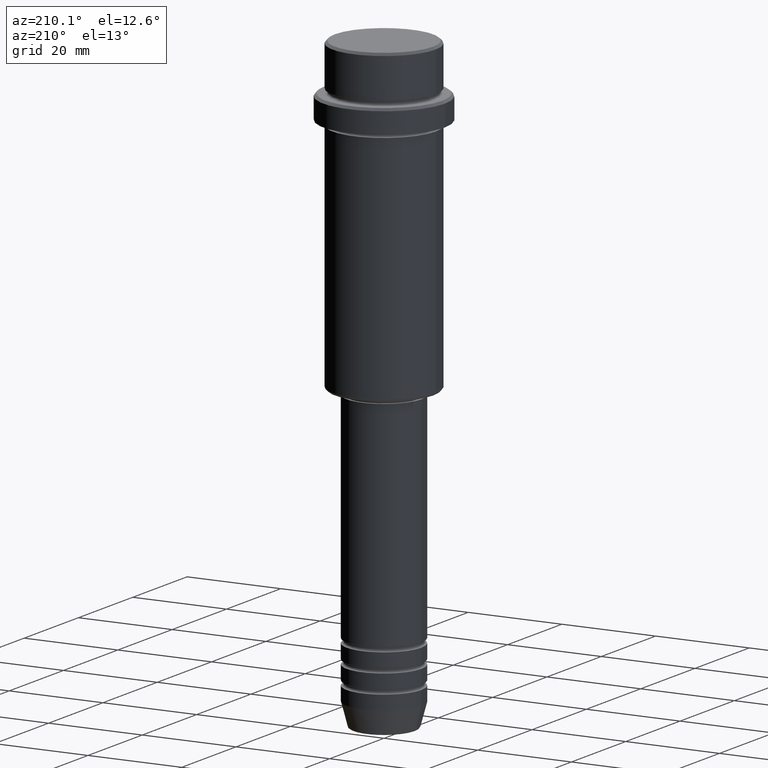
[diagram: clean part render]
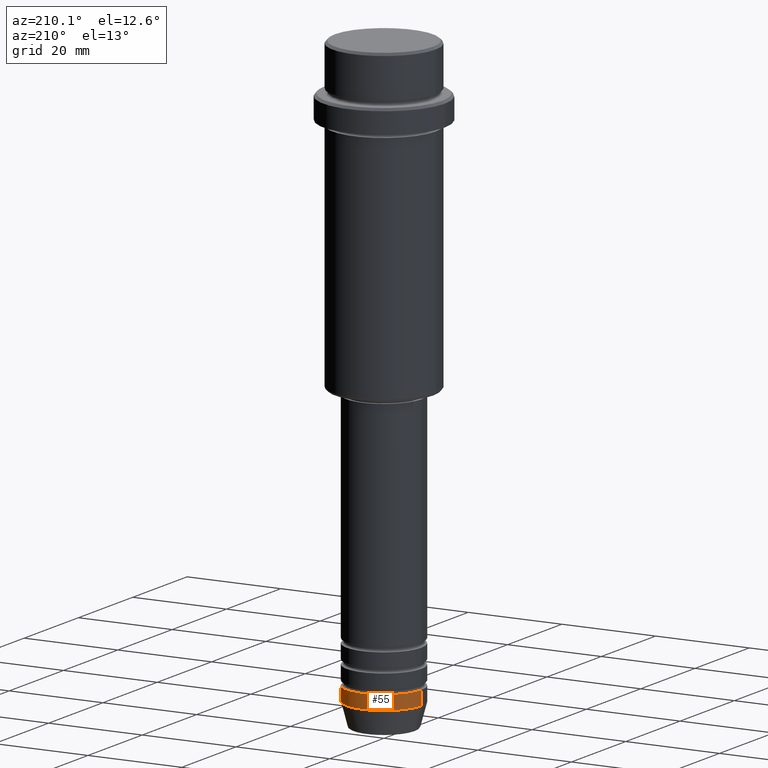
[diagram: same view with one face highlighted and labeled with its STEP entity id]
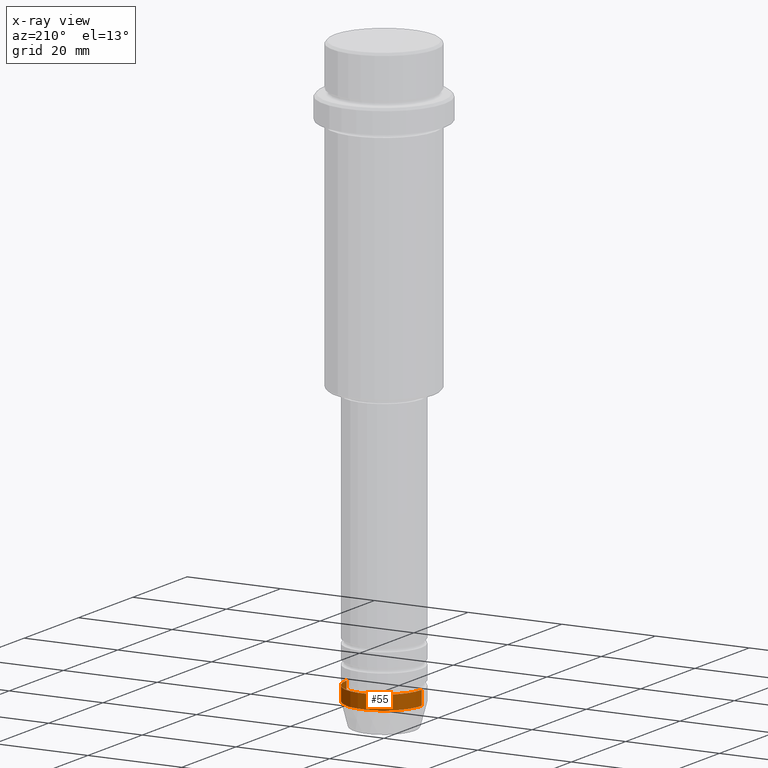
[diagram: x-ray of the same camera — body ghosted, the highlighted face saturated]
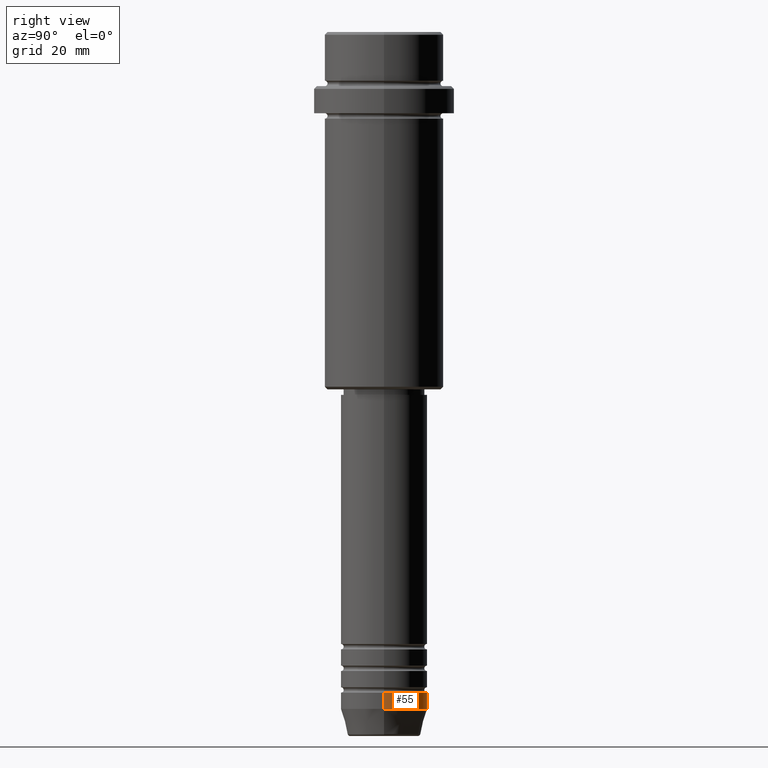
[diagram: same view with one face highlighted and labeled with its STEP entity id]
A machine part, auxiliary view. The second image highlights one B-rep face of the part: STEP entity #55.
The next image is the same camera in x-ray: the body ghosted, the highlighted face saturated — about 0% of this face is hidden behind the body in this view.
A second angle (right view) of the same face is appended — the face is thin or edge-on in the first view.
In plain terms, the highlighted cylindrical surface (partial cylindrical patch) has radius 8 mm, axis along (-0, -0, 1).
Its self-contained STEP definition (entity closure, byte-faithful):
#9 = DIRECTION ( 'NONE',  ( -0.000000000000000000, -0.000000000000000000, 1.000000000000000000 ) ) ;
#55 = ADVANCED_FACE ( 'NONE', ( #1025 ), #695, .T. ) ;
#66 = VERTEX_POINT ( 'NONE', #1174 ) ;
#120 = VECTOR ( 'NONE', #1308, 1000.000000000000000 ) ;
#151 = CARTESIAN_POINT ( 'NONE',  ( -8.000000000000000000, 9.797174393178825657E-16, 0.000000000000000000 ) ) ;
#203 = CARTESIAN_POINT ( 'NONE',  ( 0.000000000000000000, 0.000000000000000000, -122.0000000000000000 ) ) ;
#214 = LINE ( 'NONE', #963, #120 ) ;
#293 = CARTESIAN_POINT ( 'NONE',  ( 0.000000000000000000, 0.000000000000000000, 0.000000000000000000 ) ) ;
#354 = CARTESIAN_POINT ( 'NONE',  ( -8.000000000000000000, 9.797174393178825657E-16, -125.0000000000000000 ) ) ;
#560 = CARTESIAN_POINT ( 'NONE',  ( 0.000000000000000000, 0.000000000000000000, -125.0000000000000000 ) ) ;
#562 = LINE ( 'NONE', #151, #1366 ) ;
#577 = CIRCLE ( 'NONE', #1082, 8.000000000000000000 ) ;
#587 = CARTESIAN_POINT ( 'NONE',  ( 8.000000000000000000, 0.000000000000000000, -122.0000000000000000 ) ) ;
#602 = VERTEX_POINT ( 'NONE', #354 ) ;
#646 = DIRECTION ( 'NONE',  ( 1.000000000000000000, 0.000000000000000000, 0.000000000000000000 ) ) ;
#653 = DIRECTION ( 'NONE',  ( -0.000000000000000000, -0.000000000000000000, 1.000000000000000000 ) ) ;
#695 = CYLINDRICAL_SURFACE ( 'NONE', #1040, 8.000000000000000000 ) ;
#751 = DIRECTION ( 'NONE',  ( -0.000000000000000000, -0.000000000000000000, 1.000000000000000000 ) ) ;
#819 = VERTEX_POINT ( 'NONE', #1055 ) ;
#905 = VERTEX_POINT ( 'NONE', #587 ) ;
#910 = DIRECTION ( 'NONE',  ( 1.000000000000000000, 0.000000000000000000, 0.000000000000000000 ) ) ;
#922 = EDGE_CURVE ( 'NONE', #66, #602, #1037, .T. ) ;
#938 = ORIENTED_EDGE ( 'NONE', *, *, #922, .T. ) ;
#955 = DIRECTION ( 'NONE',  ( -0.000000000000000000, -0.000000000000000000, 1.000000000000000000 ) ) ;
#963 = CARTESIAN_POINT ( 'NONE',  ( 8.000000000000000000, 0.000000000000000000, 0.000000000000000000 ) ) ;
#1006 = ORIENTED_EDGE ( 'NONE', *, *, #1231, .F. ) ;
#1025 = FACE_OUTER_BOUND ( 'NONE', #1377, .T. ) ;
#1037 = CIRCLE ( 'NONE', #1295, 8.000000000000000000 ) ;
#1040 = AXIS2_PLACEMENT_3D ( 'NONE', #293, #955, #646 ) ;
#1051 = ORIENTED_EDGE ( 'NONE', *, *, #1383, .T. ) ;
#1055 = CARTESIAN_POINT ( 'NONE',  ( -8.000000000000000000, 9.797174393178825657E-16, -122.0000000000000000 ) ) ;
#1082 = AXIS2_PLACEMENT_3D ( 'NONE', #203, #751, #1188 ) ;
#1174 = CARTESIAN_POINT ( 'NONE',  ( 8.000000000000000000, 0.000000000000000000, -125.0000000000000000 ) ) ;
#1179 = EDGE_CURVE ( 'NONE', #66, #905, #214, .T. ) ;
#1188 = DIRECTION ( 'NONE',  ( 1.000000000000000000, 0.000000000000000000, 0.000000000000000000 ) ) ;
#1231 = EDGE_CURVE ( 'NONE', #905, #819, #577, .T. ) ;
#1282 = ORIENTED_EDGE ( 'NONE', *, *, #1179, .F. ) ;
#1295 = AXIS2_PLACEMENT_3D ( 'NONE', #560, #653, #910 ) ;
#1308 = DIRECTION ( 'NONE',  ( -0.000000000000000000, -0.000000000000000000, 1.000000000000000000 ) ) ;
#1366 = VECTOR ( 'NONE', #9, 1000.000000000000000 ) ;
#1377 = EDGE_LOOP ( 'NONE', ( #938, #1051, #1006, #1282 ) ) ;
#1383 = EDGE_CURVE ( 'NONE', #602, #819, #562, .T. ) ;